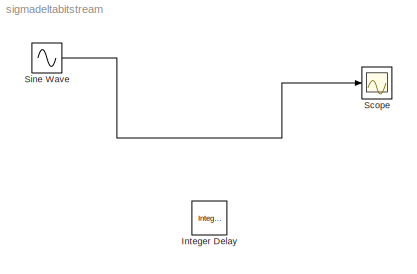
MODEL sigmadeltabitstream
KIND model
BLOCK [Reference] Integer Delay  REF=simulink/Discrete/Integer Delay
  NumDelays = 1
  Ports = [1, 1]
  SID = 8
  SourceBlock = simulink/Discrete/Integer Delay
  SourceType = Integer Delay
  samptime = -1
  vinit = 0.0
BLOCK [Scope] Scope
  DataFormat = StructureWithTime
  Floating = off
  NumInputPorts = 1
  Ports = [1]
  SID = 1
  SampleTime = 0
BLOCK [Sin] Sine Wave
  Amplitude = 4
  Bias = 0
  Frequency = 1
  Offset = 0
  Phase = 0
  Ports = [0, 1]
  SID = 7
  SampleTime = 1/10000
  Samples = 1000
  SineType = Sample based
LINE Sine Wave:1 -> Scope:1
